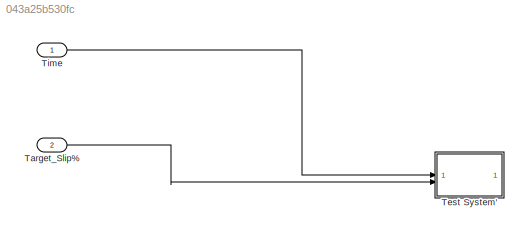
MODEL slx_043a25b530fc
KIND model
CONFIG AbsTol = auto
CONFIG EnableMultiTasking = off
CONFIG FixedStep = 0.005
CONFIG MaxStep = auto
CONFIG MinStep = auto
CONFIG RelTol = 1e-3
CONFIG SampleTimeConstraint = Unconstrained
CONFIG SolverName = FixedStepAuto
CONFIG StartTime = 0.0
CONFIG StopTime = 10.0
WORKSPACE source: mxarray member
WORKSPACE test: Simulink.LookupTable (value not decoded)
BLOCK [Inport] Target_Slip%
  Port = 2
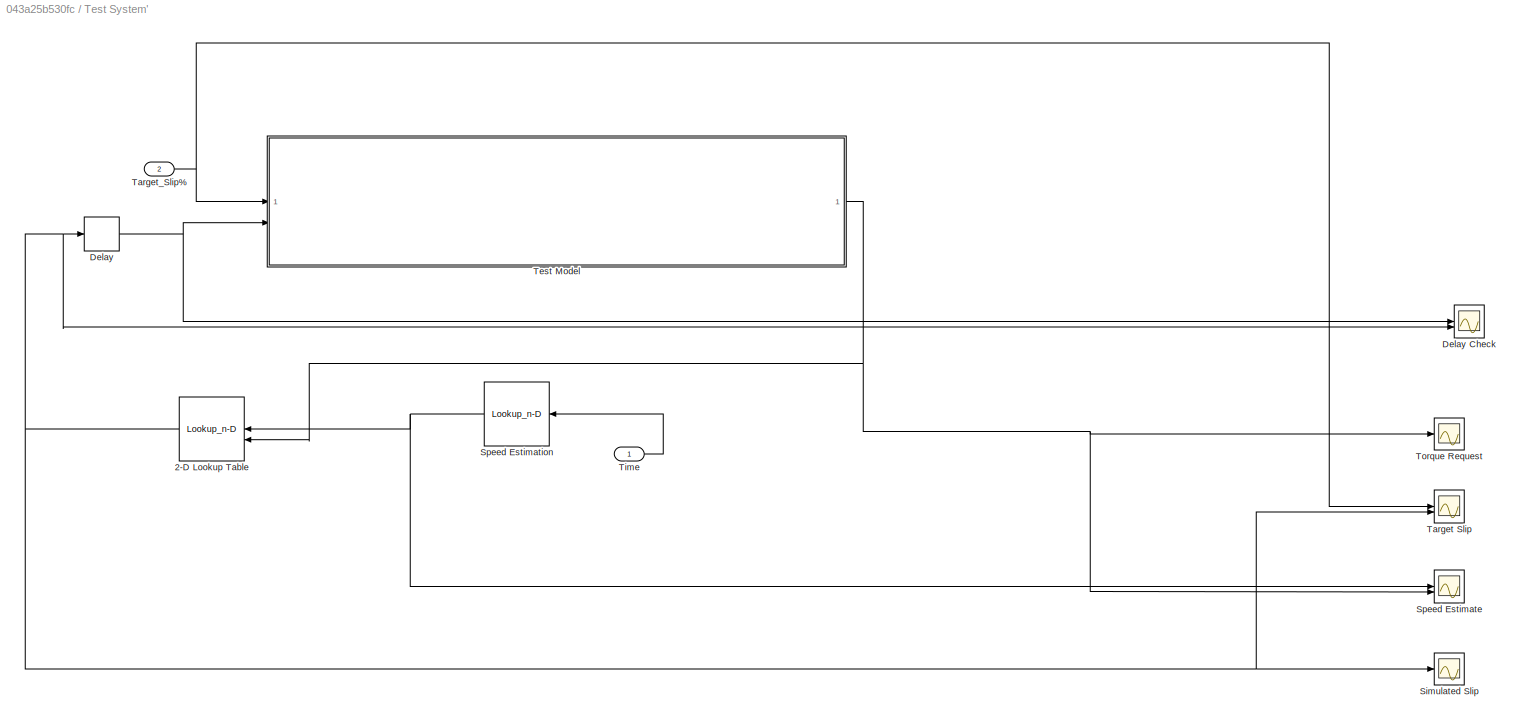
BLOCK [SubSystem] Test System'
BLOCK [Lookup_n-D] Test System'/2-D Lookup Table
  BreakpointsForDimension1 = [1:3]
  BreakpointsForDimension2 = [1:3]
  DataSpecification = Lookup table object
  InputPortMap = u0,u1
  InternalRulePriority = Speed
  LookupTableObject = test
  RndMeth = Simplest
BLOCK [Delay] Test System'/Delay 
  DelayLength = 30
  InitialCondition = 0
  InputPortMap = u0
BLOCK [Scope] Test System'/Delay Check
  Floating = off
  NumInputPorts = 2
  ScopeSpecificationString = Simulink.scopes.TimeScopeBlockCfg('CurrentConfiguration', extmgr.ConfigurationSet(extmgr.Configuration('Core','General UI',true),extmgr.Configuration('Core','Source UI',true),extmgr.Configuration('Sources','WiredSimulink',true,'DataLoggingVariableName','ScopeData4'),extmgr.Configuration('Visuals','Time Domain',true,'SerializedDisplays',{struct('MinYLimReal','-0.00387','MaxYLimReal','0.03481','YLab...<+1384ch>
BLOCK [Scope] Test System'/Simulated Slip
  Floating = off
  NumInputPorts = 1
  ScopeSpecificationString = Simulink.scopes.TimeScopeBlockCfg('CurrentConfiguration', extmgr.ConfigurationSet(extmgr.Configuration('Core','General UI',true),extmgr.Configuration('Core','Source UI',true),extmgr.Configuration('Sources','WiredSimulink',true),extmgr.Configuration('Visuals','Time Domain',true,'SerializedDisplays',{struct('MinYLimReal','-0.00342','MaxYLimReal','0.03476','YLabelReal','','MinYLimMag','0.00000','MaxY...<+1336ch>
BLOCK [Scope] Test System'/Speed Estimate
  Floating = off
  NumInputPorts = 2
  ScopeSpecificationString = Simulink.scopes.TimeScopeBlockCfg('CurrentConfiguration', extmgr.ConfigurationSet(extmgr.Configuration('Core','General UI',true),extmgr.Configuration('Core','Source UI',true),extmgr.Configuration('Sources','WiredSimulink',true,'DataLoggingVariableName','ScopeData1'),extmgr.Configuration('Visuals','Time Domain',true,'SerializedDisplays',{struct('MinYLimReal','-18.8988','MaxYLimReal','170.08921','YL...<+1452ch>
BLOCK [Lookup_n-D] Test System'/Speed Estimation
  BreakpointsForDimension1 = [0;10]
  InputPortMap = u0
  InternalRulePriority = Speed
  NumberOfTableDimensions = 1
  RndMeth = Simplest
  Table = [0;50]
BLOCK [Scope] Test System'/Target Slip
  Floating = off
  NumInputPorts = 2
  ScopeSpecificationString = Simulink.scopes.TimeScopeBlockCfg('CurrentConfiguration', extmgr.ConfigurationSet(extmgr.Configuration('Core','General UI',true),extmgr.Configuration('Core','Source UI',true),extmgr.Configuration('Sources','WiredSimulink',true,'DataLoggingVariableName','ScopeData2'),extmgr.Configuration('Visuals','Time Domain',true,'SerializedDisplays',{struct('MinYLimReal','0.012','MaxYLimReal','0.02238','YLabelR...<+1509ch>
BLOCK [Inport] Test System'/Target_Slip%
  Port = 2
BLOCK [ModelReference] Test System'/Test Model
  ModelNameDialog = SlipBasedLC_NoFF.slx
  ModelReferenceVersion = 1.31
BLOCK [Inport] Test System'/Time
BLOCK [Scope] Test System'/Torque Request
  Floating = off
  NumInputPorts = 1
  ScopeSpecificationString = Simulink.scopes.TimeScopeBlockCfg('CurrentConfiguration', extmgr.ConfigurationSet(extmgr.Configuration('Core','General UI',true),extmgr.Configuration('Core','Source UI',true),extmgr.Configuration('Sources','WiredSimulink',true,'DataLoggingVariableName','ScopeData3'),extmgr.Configuration('Visuals','Time Domain',true,'SerializedDisplays',{struct('MinYLimReal','28.38169','MaxYLimReal','164.56483','YL...<+1405ch>
BLOCK [Inport] Time
LINE Target_Slip%:1 -> Test System':2
NET Test System'/2-D Lookup Table:1 -> Test System'/Delay :1, Test System'/Delay Check:2, Test System'/Simulated Slip:1, Test System'/Target Slip:2
NET Test System'/Delay :1 -> Test System'/Delay Check:1, Test System'/Test Model:2
NET Test System'/Speed Estimation:1 -> Test System'/2-D Lookup Table:1, Test System'/Speed Estimate:1
NET Test System'/Target_Slip%:1 -> Test System'/Target Slip:1, Test System'/Test Model:1
NET Test System'/Test Model:1 -> Test System'/2-D Lookup Table:2, Test System'/Speed Estimate:2, Test System'/Torque Request:1
LINE Test System'/Time:1 -> Test System'/Speed Estimation:1
LINE Time:1 -> Test System':1
note: NET lines group one-source signal fan-out (src -> all destinations, sorted); 1:1 wires keep LINE
